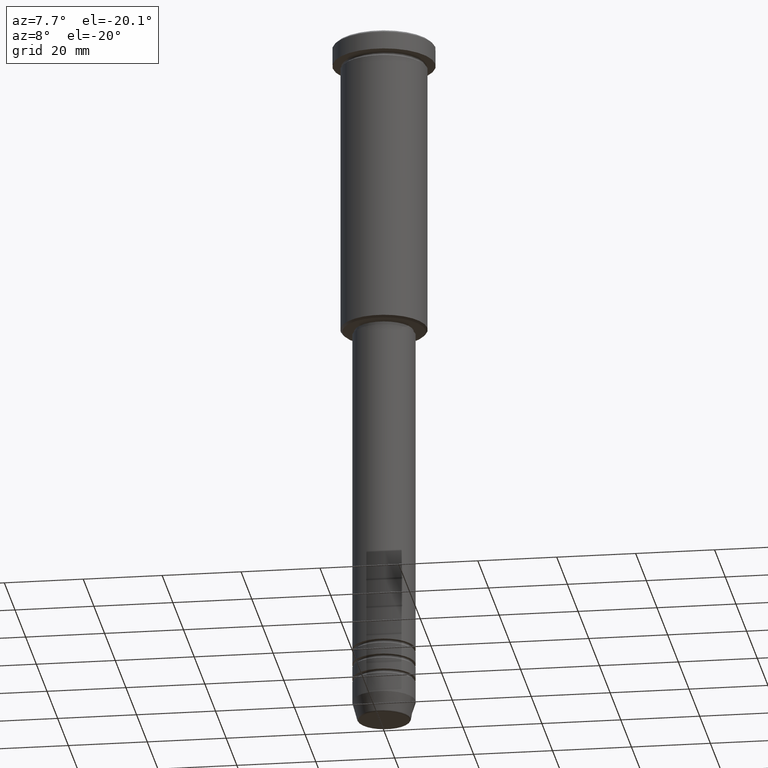
[diagram: clean part render]
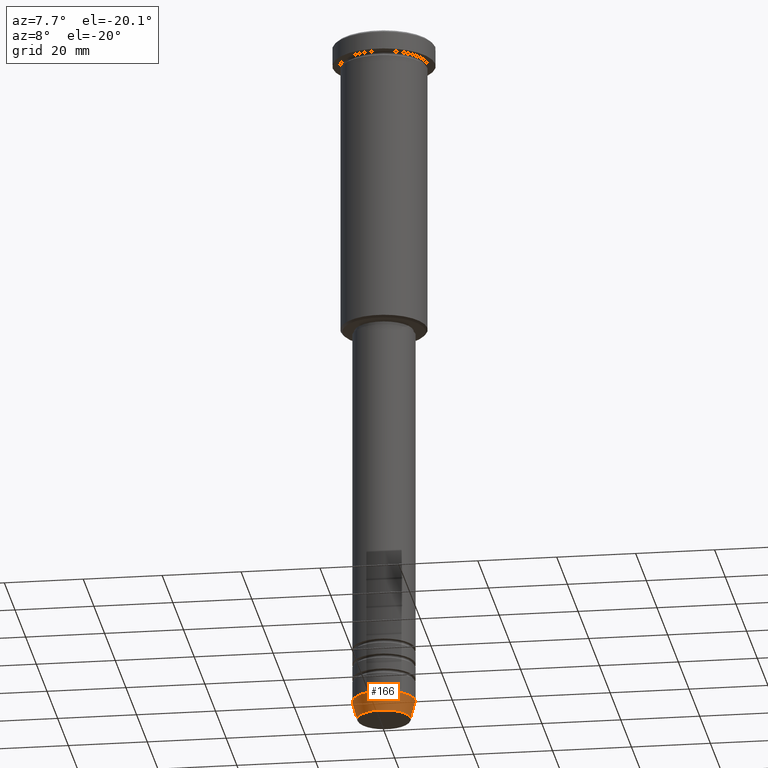
[diagram: same view with one face highlighted and labeled with its STEP entity id]
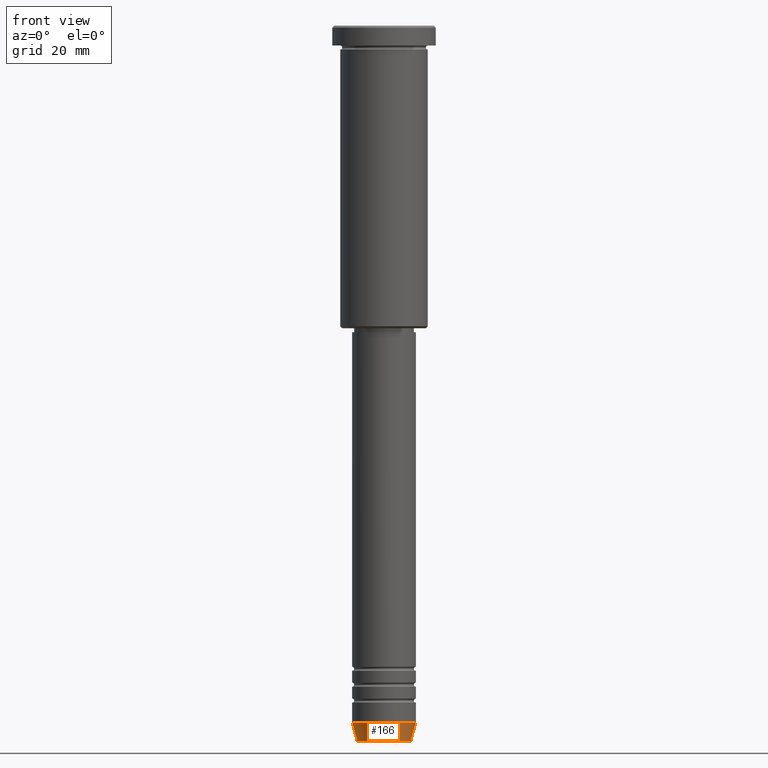
[diagram: same view with one face highlighted and labeled with its STEP entity id]
A machine part, auxiliary view. The second image highlights one B-rep face of the part: STEP entity #166.
A second angle (front view) of the same face is appended — the face is thin or edge-on in the first view.
In plain terms, the highlighted conical surface has half-angle 15 deg.
Its self-contained STEP definition (entity closure, byte-faithful):
#8 = CIRCLE ( 'NONE', #717, 8.000000000000000000 ) ;
#18 = DIRECTION ( 'NONE',  ( 1.000000000000000000, 0.000000000000000000, 0.000000000000000000 ) ) ;
#58 = CARTESIAN_POINT ( 'NONE',  ( 6.759553456999444876, 0.000000000000000000, -179.6294095225512422 ) ) ;
#70 = CARTESIAN_POINT ( 'NONE',  ( -8.000000000000000000, 9.797174393178825657E-16, -175.0000000000000284 ) ) ;
#105 = VERTEX_POINT ( 'NONE', #1067 ) ;
#133 = CONICAL_SURFACE ( 'NONE', #802, 8.000000000000000000, 0.2617993877991499629 ) ;
#140 = ORIENTED_EDGE ( 'NONE', *, *, #1116, .T. ) ;
#163 = CARTESIAN_POINT ( 'NONE',  ( 0.000000000000000000, 0.000000000000000000, -175.0000000000000284 ) ) ;
#166 = ADVANCED_FACE ( 'NONE', ( #294 ), #133, .T. ) ;
#293 = AXIS2_PLACEMENT_3D ( 'NONE', #456, #548, #1093 ) ;
#294 = FACE_OUTER_BOUND ( 'NONE', #790, .T. ) ;
#303 = ORIENTED_EDGE ( 'NONE', *, *, #983, .F. ) ;
#393 = VECTOR ( 'NONE', #1179, 1000.000000000000114 ) ;
#400 = ORIENTED_EDGE ( 'NONE', *, *, #578, .F. ) ;
#410 = ORIENTED_EDGE ( 'NONE', *, *, #1107, .T. ) ;
#454 = VERTEX_POINT ( 'NONE', #658 ) ;
#456 = CARTESIAN_POINT ( 'NONE',  ( 0.000000000000000000, 0.000000000000000000, -179.6294095225512422 ) ) ;
#548 = DIRECTION ( 'NONE',  ( -0.000000000000000000, -0.000000000000000000, 1.000000000000000000 ) ) ;
#578 = EDGE_CURVE ( 'NONE', #454, #665, #799, .T. ) ;
#617 = DIRECTION ( 'NONE',  ( -0.2588190451025212391, 3.169619151431771721E-17, 0.9659258262890680902 ) ) ;
#632 = DIRECTION ( 'NONE',  ( -0.000000000000000000, -0.000000000000000000, 1.000000000000000000 ) ) ;
#658 = CARTESIAN_POINT ( 'NONE',  ( -6.759553456999444876, 9.037619948979310157E-16, -179.6294095225512422 ) ) ;
#665 = VERTEX_POINT ( 'NONE', #718 ) ;
#717 = AXIS2_PLACEMENT_3D ( 'NONE', #1057, #842, #18 ) ;
#718 = CARTESIAN_POINT ( 'NONE',  ( -8.000000000000000000, 9.797174393178825657E-16, -175.0000000000000284 ) ) ;
#721 = LINE ( 'NONE', #910, #393 ) ;
#770 = CIRCLE ( 'NONE', #293, 6.759553456999444876 ) ;
#790 = EDGE_LOOP ( 'NONE', ( #400, #410, #140, #303 ) ) ;
#797 = DIRECTION ( 'NONE',  ( 1.000000000000000000, 0.000000000000000000, 0.000000000000000000 ) ) ;
#799 = LINE ( 'NONE', #70, #1047 ) ;
#802 = AXIS2_PLACEMENT_3D ( 'NONE', #163, #632, #797 ) ;
#842 = DIRECTION ( 'NONE',  ( -0.000000000000000000, -0.000000000000000000, 1.000000000000000000 ) ) ;
#910 = CARTESIAN_POINT ( 'NONE',  ( 8.000000000000000000, 0.000000000000000000, -175.0000000000000284 ) ) ;
#983 = EDGE_CURVE ( 'NONE', #665, #105, #8, .T. ) ;
#1047 = VECTOR ( 'NONE', #617, 1000.000000000000114 ) ;
#1057 = CARTESIAN_POINT ( 'NONE',  ( 0.000000000000000000, 0.000000000000000000, -175.0000000000000284 ) ) ;
#1067 = CARTESIAN_POINT ( 'NONE',  ( 8.000000000000000000, 0.000000000000000000, -175.0000000000000284 ) ) ;
#1093 = DIRECTION ( 'NONE',  ( 1.000000000000000000, 0.000000000000000000, 0.000000000000000000 ) ) ;
#1107 = EDGE_CURVE ( 'NONE', #454, #1123, #770, .T. ) ;
#1116 = EDGE_CURVE ( 'NONE', #1123, #105, #721, .T. ) ;
#1123 = VERTEX_POINT ( 'NONE', #58 ) ;
#1179 = DIRECTION ( 'NONE',  ( 0.2588190451025212391, 0.000000000000000000, 0.9659258262890680902 ) ) ;